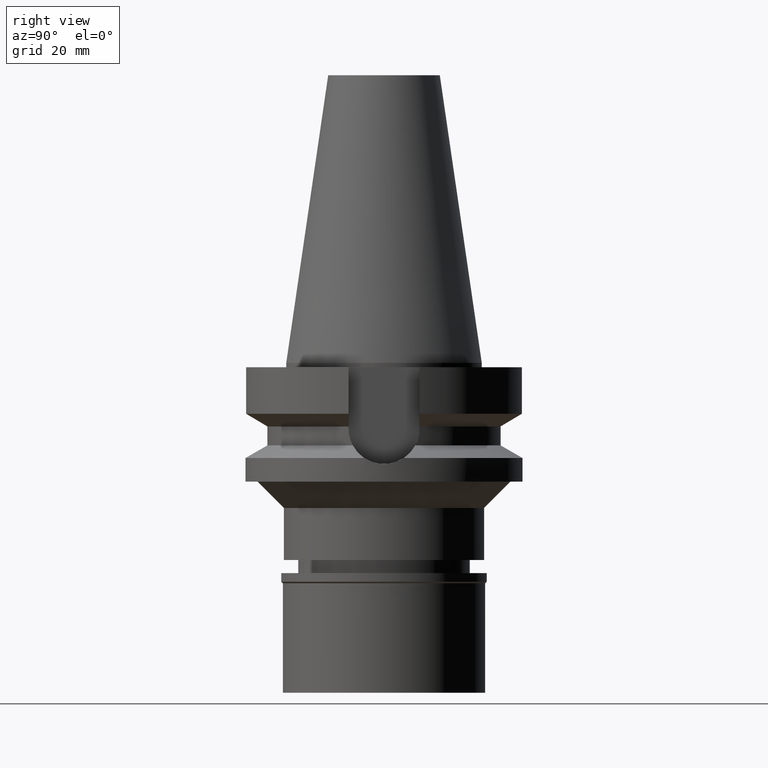
[diagram: clean part render]
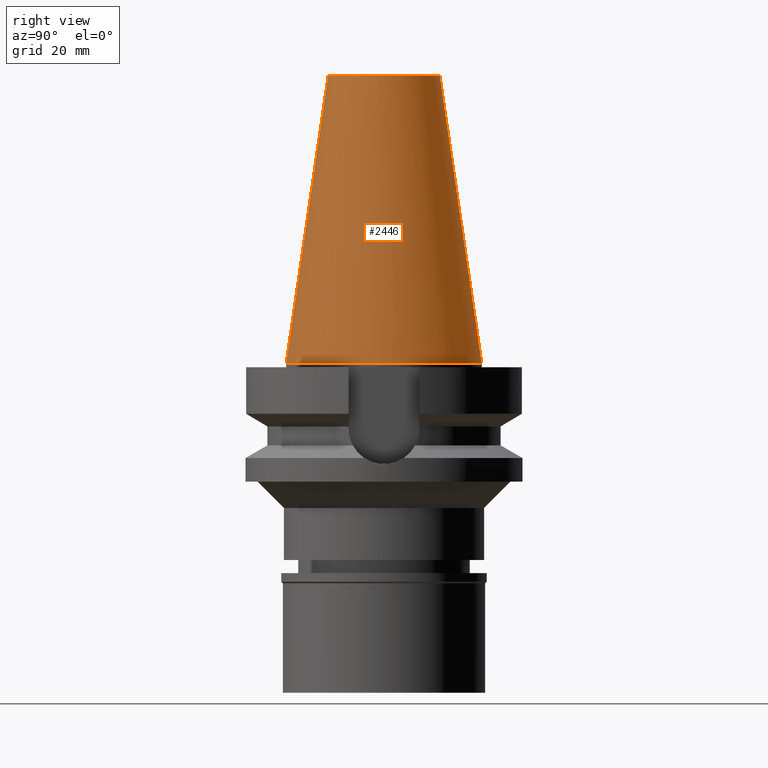
[diagram: same view with one face highlighted and labeled with its STEP entity id]
A machine part, right view. The second image highlights one B-rep face of the part: STEP entity #2446.
In plain terms, the highlighted conical surface has half-angle 8.297 deg.
Its self-contained STEP definition (entity closure, byte-faithful):
#6 = AXIS2_PLACEMENT_3D ( 'NONE', #90, #1240, #2593 ) ;
#12 = DIRECTION ( 'NONE',  ( 0.0000000000000000000, 1.000000000000000000, 0.0000000000000000000 ) ) ;
#90 = CARTESIAN_POINT ( 'NONE',  ( 0.0000000000000000000, 0.0000000000000000000, 32.70000000000000284 ) ) ;
#201 = EDGE_CURVE ( 'NONE', #2925, #1736, #2291, .T. ) ;
#248 = VECTOR ( 'NONE', #487, 1000.000000000000114 ) ;
#308 = CARTESIAN_POINT ( 'NONE',  ( 0.0000000000000000000, -12.68766899429999917, 65.40000000000000568 ) ) ;
#320 = CARTESIAN_POINT ( 'NONE',  ( 0.0000000000000000000, 12.68766899429999917, 65.40000000000000568 ) ) ;
#387 = EDGE_CURVE ( 'NONE', #1736, #920, #1296, .T. ) ;
#487 = DIRECTION ( 'NONE',  ( 0.0000000000000000000, 0.1443043893539925626, -0.9895333461855498891 ) ) ;
#542 = FACE_OUTER_BOUND ( 'NONE', #790, .T. ) ;
#778 = CONICAL_SURFACE ( 'NONE', #6, 17.45633449714999941, 0.1448099680379422438 ) ;
#790 = EDGE_LOOP ( 'NONE', ( #2978, #1214, #1816, #1782 ) ) ;
#920 = VERTEX_POINT ( 'NONE', #1449 ) ;
#1044 = CARTESIAN_POINT ( 'NONE',  ( 0.0000000000000000000, 12.68766899429999917, 65.40000000000000568 ) ) ;
#1213 = CIRCLE ( 'NONE', #1705, 22.22500000000000142 ) ;
#1214 = ORIENTED_EDGE ( 'NONE', *, *, #387, .T. ) ;
#1238 = DIRECTION ( 'NONE',  ( 0.0000000000000000000, 0.0000000000000000000, -1.000000000000000000 ) ) ;
#1240 = DIRECTION ( 'NONE',  ( 0.0000000000000000000, 0.0000000000000000000, -1.000000000000000000 ) ) ;
#1282 = DIRECTION ( 'NONE',  ( 0.0000000000000000000, 1.000000000000000000, 0.0000000000000000000 ) ) ;
#1296 = LINE ( 'NONE', #2770, #1940 ) ;
#1406 = DIRECTION ( 'NONE',  ( 0.0000000000000000000, 0.0000000000000000000, -1.000000000000000000 ) ) ;
#1449 = CARTESIAN_POINT ( 'NONE',  ( 0.0000000000000000000, -22.22500000000000142, -9.947598300640998705E-14 ) ) ;
#1609 = CARTESIAN_POINT ( 'NONE',  ( 0.0000000000000000000, 0.0000000000000000000, -2.273736754432000254E-13 ) ) ;
#1705 = AXIS2_PLACEMENT_3D ( 'NONE', #1609, #1406, #12 ) ;
#1736 = VERTEX_POINT ( 'NONE', #308 ) ;
#1782 = ORIENTED_EDGE ( 'NONE', *, *, #2442, .F. ) ;
#1816 = ORIENTED_EDGE ( 'NONE', *, *, #2509, .F. ) ;
#1819 = DIRECTION ( 'NONE',  ( 0.0000000000000000000, -0.1443043893539925626, -0.9895333461855498891 ) ) ;
#1940 = VECTOR ( 'NONE', #1819, 1000.000000000000114 ) ;
#2142 = AXIS2_PLACEMENT_3D ( 'NONE', #2926, #1238, #1282 ) ;
#2291 = CIRCLE ( 'NONE', #2142, 12.68766899429999917 ) ;
#2442 = EDGE_CURVE ( 'NONE', #2925, #2983, #2651, .T. ) ;
#2446 = ADVANCED_FACE ( 'NONE', ( #542 ), #778, .T. ) ;
#2447 = CARTESIAN_POINT ( 'NONE',  ( 0.0000000000000000000, 22.22500000000000142, -9.947598300640998705E-14 ) ) ;
#2509 = EDGE_CURVE ( 'NONE', #2983, #920, #1213, .T. ) ;
#2593 = DIRECTION ( 'NONE',  ( 0.0000000000000000000, -1.000000000000000000, 0.0000000000000000000 ) ) ;
#2651 = LINE ( 'NONE', #320, #248 ) ;
#2770 = CARTESIAN_POINT ( 'NONE',  ( 0.0000000000000000000, -12.68766899429999917, 65.40000000000000568 ) ) ;
#2925 = VERTEX_POINT ( 'NONE', #1044 ) ;
#2926 = CARTESIAN_POINT ( 'NONE',  ( 0.0000000000000000000, 0.0000000000000000000, 65.40000000000000568 ) ) ;
#2978 = ORIENTED_EDGE ( 'NONE', *, *, #201, .T. ) ;
#2983 = VERTEX_POINT ( 'NONE', #2447 ) ;